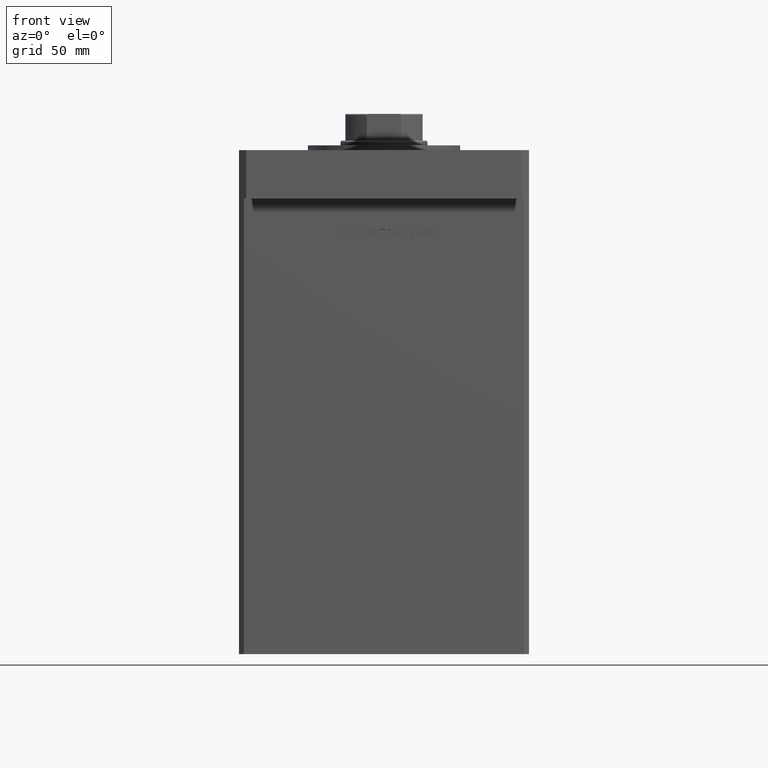
[diagram: clean part render]
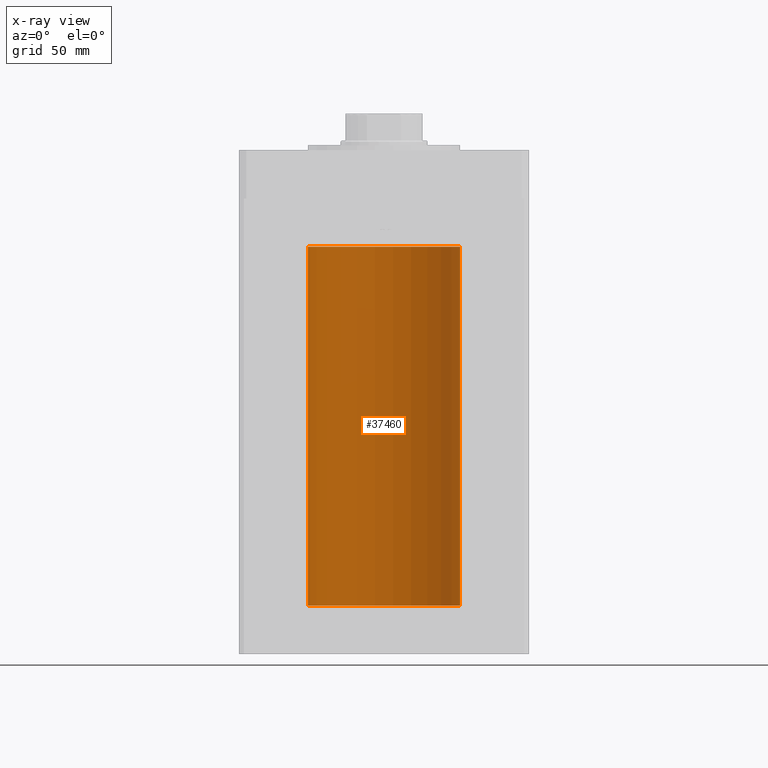
[diagram: x-ray — body ghosted, one internal face saturated and labeled with its STEP entity id]
A machine part, front view, then the same camera in x-ray: the body is ghosted and one INTERNAL B-rep face — a face not visible from any outside direction — is saturated and labeled: STEP entity #37460.
In plain terms, the highlighted cylindrical surface (partial cylindrical patch) has radius 31.5 mm, axis along (-0, -0, -1).
Its self-contained STEP definition (entity closure, byte-faithful):
#610 = ORIENTED_EDGE ( 'NONE', *, *, #43477, .F. ) ;
#1273 = ORIENTED_EDGE ( 'NONE', *, *, #22004, .T. ) ;
#2018 = DIRECTION ( 'NONE',  ( -1.000000000000000000, 0.000000000000000000, 0.000000000000000000 ) ) ;
#2096 = CARTESIAN_POINT ( 'NONE',  ( 0.000000000000000000, 0.000000000000000000, 148.5000000000000000 ) ) ;
#3677 = CARTESIAN_POINT ( 'NONE',  ( 31.50000000000000000, 3.857637417314162689E-15, 148.5000000000000000 ) ) ;
#3743 = VERTEX_POINT ( 'NONE', #3677 ) ;
#6183 = DIRECTION ( 'NONE',  ( -0.000000000000000000, 0.000000000000000000, 1.000000000000000000 ) ) ;
#10451 = CARTESIAN_POINT ( 'NONE',  ( 0.000000000000000000, 0.000000000000000000, 148.5000000000000000 ) ) ;
#10525 = DIRECTION ( 'NONE',  ( 1.000000000000000000, 0.000000000000000000, 0.000000000000000000 ) ) ;
#10718 = DIRECTION ( 'NONE',  ( -0.000000000000000000, -0.000000000000000000, -1.000000000000000000 ) ) ;
#11182 = EDGE_CURVE ( 'NONE', #3743, #12324, #34819, .T. ) ;
#11590 = AXIS2_PLACEMENT_3D ( 'NONE', #10451, #10718, #2018 ) ;
#11637 = VERTEX_POINT ( 'NONE', #14325 ) ;
#12324 = VERTEX_POINT ( 'NONE', #50823 ) ;
#12485 = VECTOR ( 'NONE', #13600, 1000.000000000000000 ) ;
#13600 = DIRECTION ( 'NONE',  ( -0.000000000000000000, -0.000000000000000000, -1.000000000000000000 ) ) ;
#14325 = CARTESIAN_POINT ( 'NONE',  ( -31.50000000000000000, 0.000000000000000000, 148.5000000000000000 ) ) ;
#14352 = DIRECTION ( 'NONE',  ( -0.000000000000000000, 0.000000000000000000, 1.000000000000000000 ) ) ;
#15420 = CARTESIAN_POINT ( 'NONE',  ( 0.000000000000000000, 0.000000000000000000, 0.000000000000000000 ) ) ;
#16272 = EDGE_CURVE ( 'NONE', #11637, #46891, #52260, .T. ) ;
#21224 = AXIS2_PLACEMENT_3D ( 'NONE', #15420, #6183, #35310 ) ;
#22004 = EDGE_CURVE ( 'NONE', #3743, #11637, #32937, .T. ) ;
#22314 = ORIENTED_EDGE ( 'NONE', *, *, #16272, .T. ) ;
#24219 = CARTESIAN_POINT ( 'NONE',  ( -31.50000000000000000, 0.000000000000000000, 148.5000000000000000 ) ) ;
#29125 = ORIENTED_EDGE ( 'NONE', *, *, #11182, .F. ) ;
#32527 = CIRCLE ( 'NONE', #21224, 31.50000000000000000 ) ;
#32937 = CIRCLE ( 'NONE', #43385, 31.50000000000000000 ) ;
#34819 = LINE ( 'NONE', #47087, #12485 ) ;
#35310 = DIRECTION ( 'NONE',  ( 1.000000000000000000, 0.000000000000000000, 0.000000000000000000 ) ) ;
#37460 = ADVANCED_FACE ( 'NONE', ( #39829 ), #38761, .F. ) ;
#38761 = CYLINDRICAL_SURFACE ( 'NONE', #11590, 31.50000000000000000 ) ;
#39829 = FACE_OUTER_BOUND ( 'NONE', #46074, .T. ) ;
#40002 = DIRECTION ( 'NONE',  ( -0.000000000000000000, -0.000000000000000000, -1.000000000000000000 ) ) ;
#40693 = CARTESIAN_POINT ( 'NONE',  ( -31.50000000000000000, 0.000000000000000000, 0.000000000000000000 ) ) ;
#43385 = AXIS2_PLACEMENT_3D ( 'NONE', #2096, #14352, #10525 ) ;
#43477 = EDGE_CURVE ( 'NONE', #12324, #46891, #32527, .T. ) ;
#44085 = VECTOR ( 'NONE', #40002, 1000.000000000000000 ) ;
#46074 = EDGE_LOOP ( 'NONE', ( #29125, #1273, #22314, #610 ) ) ;
#46891 = VERTEX_POINT ( 'NONE', #40693 ) ;
#47087 = CARTESIAN_POINT ( 'NONE',  ( 31.50000000000000000, 3.857637417314162689E-15, 148.5000000000000000 ) ) ;
#50823 = CARTESIAN_POINT ( 'NONE',  ( 31.50000000000000000, 3.857637417314162689E-15, 0.000000000000000000 ) ) ;
#52260 = LINE ( 'NONE', #24219, #44085 ) ;